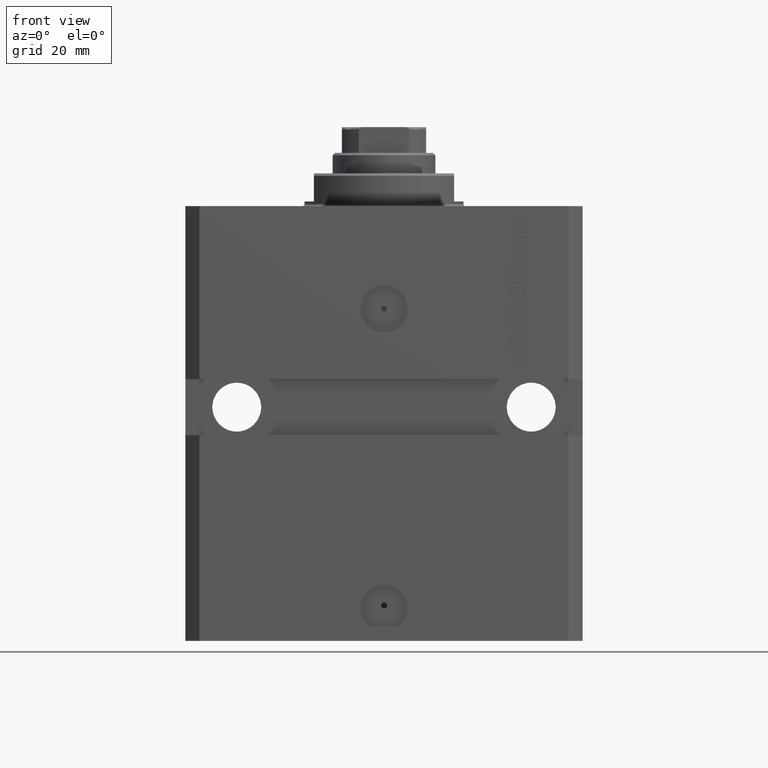
[diagram: clean part render]
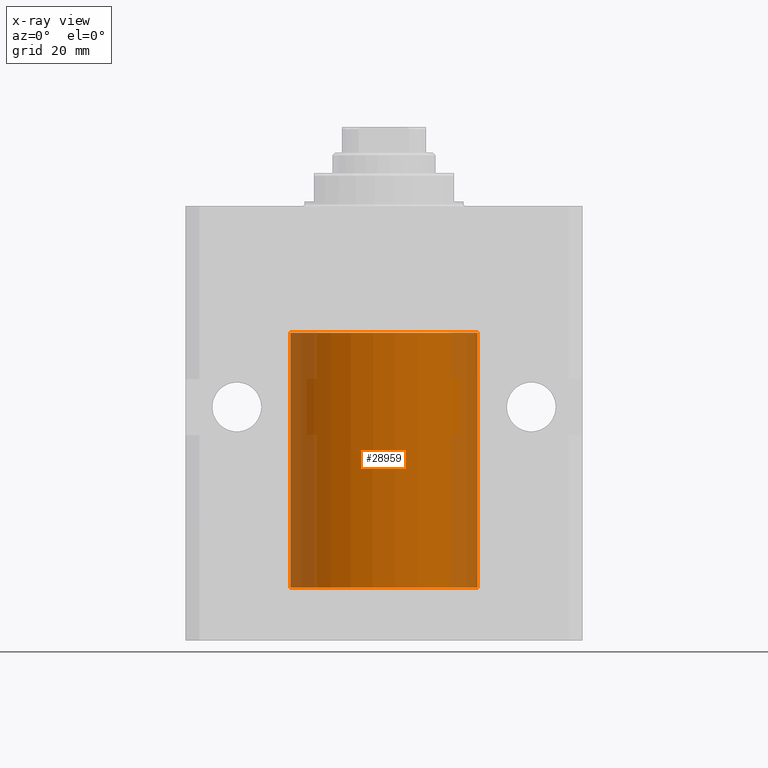
[diagram: x-ray — body ghosted, one internal face saturated and labeled with its STEP entity id]
A machine part, front view, then the same camera in x-ray: the body is ghosted and one INTERNAL B-rep face — a face not visible from any outside direction — is saturated and labeled: STEP entity #28959.
In plain terms, the highlighted cylindrical surface (partial cylindrical patch) has radius 20 mm, axis along (0, 0, 1).
Its self-contained STEP definition (entity closure, byte-faithful):
#296 = CARTESIAN_POINT ( 'NONE',  ( 20.00000000000000000, -4.058908006348821872E-15, -79.62500000000000000 ) ) ;
#825 = CARTESIAN_POINT ( 'NONE',  ( 20.00000000000000000, -4.058908006348821872E-15, -79.62500000000000000 ) ) ;
#1687 = CARTESIAN_POINT ( 'NONE',  ( 0.000000000000000000, 0.000000000000000000, -81.60000000000000853 ) ) ;
#2160 = VERTEX_POINT ( 'NONE', #12771 ) ;
#2533 = LINE ( 'NONE', #47924, #16704 ) ;
#2841 = CARTESIAN_POINT ( 'NONE',  ( -19.99255948581289033, -0.5575529953197770894, -78.67383335671266309 ) ) ;
#3705 = AXIS2_PLACEMENT_3D ( 'NONE', #1687, #13351, #28208 ) ;
#4116 = EDGE_CURVE ( 'NONE', #25676, #22899, #21767, .T. ) ;
#4125 = CARTESIAN_POINT ( 'NONE',  ( 20.00000000000000000, -0.1632180151482451602, -78.37499999999984368 ) ) ;
#4318 = DIRECTION ( 'NONE',  ( 1.000000000000000000, 0.000000000000000000, 0.000000000000000000 ) ) ;
#4427 = CARTESIAN_POINT ( 'NONE',  ( 20.00000000000010303, 3.555666352936568165E-13, -78.37499999999667466 ) ) ;
#4481 = CARTESIAN_POINT ( 'NONE',  ( 20.00000000000000000, -0.1650670266421430665, -79.62500000000002842 ) ) ;
#5583 = ORIENTED_EDGE ( 'NONE', *, *, #10221, .T. ) ;
#6020 = EDGE_LOOP ( 'NONE', ( #28182, #32768, #38652, #5583, #44420, #37906, #6079, #41953, #35249 ) ) ;
#6079 = ORIENTED_EDGE ( 'NONE', *, *, #32302, .T. ) ;
#8605 = CARTESIAN_POINT ( 'NONE',  ( 19.99023198964933812, -0.6250000000000827116, -79.00000000000000000 ) ) ;
#9328 = VECTOR ( 'NONE', #48114, 1000.000000000000000 ) ;
#9820 = DIRECTION ( 'NONE',  ( 0.000000000000000000, 0.000000000000000000, 1.000000000000000000 ) ) ;
#9899 = CARTESIAN_POINT ( 'NONE',  ( -20.00000000000000000, -1.124177324826063808E-14, -78.37500000000000000 ) ) ;
#10142 = CARTESIAN_POINT ( 'NONE',  ( -19.99765984516762174, -0.3269569594424049930, -78.44291008943298493 ) ) ;
#10221 = EDGE_CURVE ( 'NONE', #11127, #15264, #40811, .T. ) ;
#10237 = AXIS2_PLACEMENT_3D ( 'NONE', #33749, #26452, #4318 ) ;
#10371 = CARTESIAN_POINT ( 'NONE',  ( -19.99767054355995555, -0.3263099029014857599, -79.55741108240768256 ) ) ;
#10392 = CARTESIAN_POINT ( 'NONE',  ( 20.00000000000000000, 0.000000000000000000, -27.10000000000000142 ) ) ;
#10810 = CYLINDRICAL_SURFACE ( 'NONE', #3705, 20.00000000000000000 ) ;
#11127 = VERTEX_POINT ( 'NONE', #9899 ) ;
#12664 = CARTESIAN_POINT ( 'NONE',  ( 19.99023198964933812, -0.6250000000000827116, -79.00000000000000000 ) ) ;
#12771 = CARTESIAN_POINT ( 'NONE',  ( -20.00000000000010303, 3.580159286679549072E-13, -79.62500000000332534 ) ) ;
#12877 = VECTOR ( 'NONE', #46278, 1000.000000000000000 ) ;
#13190 = LINE ( 'NONE', #42646, #12877 ) ;
#13351 = DIRECTION ( 'NONE',  ( -0.000000000000000000, -0.000000000000000000, 1.000000000000000000 ) ) ;
#14016 = CIRCLE ( 'NONE', #10237, 20.00000000000000000 ) ;
#14728 = VERTEX_POINT ( 'NONE', #24233 ) ;
#14822 = CARTESIAN_POINT ( 'NONE',  ( 19.99023198964933812, -0.6250000000000827116, -79.00000000000000000 ) ) ;
#15264 = VERTEX_POINT ( 'NONE', #22546 ) ;
#16704 = VECTOR ( 'NONE', #41107, 1000.000000000000000 ) ;
#18600 = AXIS2_PLACEMENT_3D ( 'NONE', #28568, #9820, #46569 ) ;
#19216 = EDGE_CURVE ( 'NONE', #21298, #36254, #2533, .T. ) ;
#20221 = EDGE_CURVE ( 'NONE', #25593, #22899, #13190, .T. ) ;
#20700 = CARTESIAN_POINT ( 'NONE',  ( -20.00000000000000000, 2.449293598294706513E-15, -81.60000000000000853 ) ) ;
#21298 = VERTEX_POINT ( 'NONE', #4427 ) ;
#21332 = CARTESIAN_POINT ( 'NONE',  ( -20.00000000000000355, -0.1631318982819177366, -79.62500000000015632 ) ) ;
#21767 = B_SPLINE_CURVE_WITH_KNOTS ( 'NONE', 3,
 ( #8605, #41693, #37799, #23450, #4481, #825 ),
 .UNSPECIFIED., .F., .F.,
 ( 4, 2, 4 ),
 ( 0.002931526102908805446, 0.003419696219975630440, 0.003907866337042455000 ),
 .UNSPECIFIED. ) ;
#22125 = CARTESIAN_POINT ( 'NONE',  ( 20.00000000000010303, 3.555666352936568165E-13, -78.37499999999667466 ) ) ;
#22546 = CARTESIAN_POINT ( 'NONE',  ( -20.00000000000000000, 2.449293598294706513E-15, -27.10000000000000142 ) ) ;
#22899 = VERTEX_POINT ( 'NONE', #296 ) ;
#23450 = CARTESIAN_POINT ( 'NONE',  ( 19.99766246719553209, -0.3267907458473873761, -79.55716086079694094 ) ) ;
#24233 = CARTESIAN_POINT ( 'NONE',  ( -20.00000000000000000, 2.449293598294706513E-15, -81.60000000000000853 ) ) ;
#24345 = EDGE_CURVE ( 'NONE', #2160, #11127, #42381, .T. ) ;
#25225 = CARTESIAN_POINT ( 'NONE',  ( -20.00000000000010303, 3.580159286679549072E-13, -79.62500000000332534 ) ) ;
#25593 = VERTEX_POINT ( 'NONE', #44070 ) ;
#25676 = VERTEX_POINT ( 'NONE', #12664 ) ;
#25739 = EDGE_CURVE ( 'NONE', #14728, #2160, #28012, .T. ) ;
#26452 = DIRECTION ( 'NONE',  ( 0.000000000000000000, 0.000000000000000000, 1.000000000000000000 ) ) ;
#28012 = LINE ( 'NONE', #20700, #37767 ) ;
#28182 = ORIENTED_EDGE ( 'NONE', *, *, #38562, .F. ) ;
#28208 = DIRECTION ( 'NONE',  ( 1.000000000000000000, 0.000000000000000000, 0.000000000000000000 ) ) ;
#28568 = CARTESIAN_POINT ( 'NONE',  ( 0.000000000000000000, 0.000000000000000000, -27.10000000000000142 ) ) ;
#28959 = ADVANCED_FACE ( 'NONE', ( #46922 ), #10810, .F. ) ;
#32302 = EDGE_CURVE ( 'NONE', #21298, #25676, #46849, .T. ) ;
#32768 = ORIENTED_EDGE ( 'NONE', *, *, #25739, .T. ) ;
#33749 = CARTESIAN_POINT ( 'NONE',  ( 0.000000000000000000, 0.000000000000000000, -81.60000000000000853 ) ) ;
#33942 = EDGE_CURVE ( 'NONE', #15264, #36254, #39587, .T. ) ;
#35249 = ORIENTED_EDGE ( 'NONE', *, *, #20221, .F. ) ;
#35303 = DIRECTION ( 'NONE',  ( -0.000000000000000000, -0.000000000000000000, 1.000000000000000000 ) ) ;
#36176 = CARTESIAN_POINT ( 'NONE',  ( -19.99257639367449357, -0.5569510432580352388, -79.32709448625169557 ) ) ;
#36254 = VERTEX_POINT ( 'NONE', #10392 ) ;
#36504 = CARTESIAN_POINT ( 'NONE',  ( 19.99766790699043995, -0.3264769477312362556, -78.44266063830006885 ) ) ;
#36645 = CARTESIAN_POINT ( 'NONE',  ( -20.00000000000000000, -1.124177324826063808E-14, -78.37500000000000000 ) ) ;
#36925 = CARTESIAN_POINT ( 'NONE',  ( -20.00000000000000000, 2.449293598294706513E-15, -81.60000000000000853 ) ) ;
#37767 = VECTOR ( 'NONE', #35303, 1000.000000000000000 ) ;
#37799 = CARTESIAN_POINT ( 'NONE',  ( 19.99256494106949944, -0.5573539455062719306, -79.32646132359609226 ) ) ;
#37906 = ORIENTED_EDGE ( 'NONE', *, *, #19216, .F. ) ;
#38562 = EDGE_CURVE ( 'NONE', #14728, #25593, #14016, .T. ) ;
#38652 = ORIENTED_EDGE ( 'NONE', *, *, #24345, .T. ) ;
#39587 = CIRCLE ( 'NONE', #18600, 20.00000000000000000 ) ;
#40520 = CARTESIAN_POINT ( 'NONE',  ( -20.00000000000000000, -0.1651542110816439091, -78.37500000000001421 ) ) ;
#40811 = LINE ( 'NONE', #36925, #9328 ) ;
#41107 = DIRECTION ( 'NONE',  ( -0.000000000000000000, -0.000000000000000000, 1.000000000000000000 ) ) ;
#41693 = CARTESIAN_POINT ( 'NONE',  ( 19.99023198964934167, -0.6250000000000828226, -79.16479419982725574 ) ) ;
#41953 = ORIENTED_EDGE ( 'NONE', *, *, #4116, .T. ) ;
#42381 = B_SPLINE_CURVE_WITH_KNOTS ( 'NONE', 3,
 ( #25225, #21332, #10371, #36176, #43709, #43479, #2841, #10142, #40520, #36645 ),
 .UNSPECIFIED., .F., .F.,
 ( 4, 2, 2, 2, 4 ),
 ( 0.001954154509844221576, 0.002442582466643782209, 0.002931010423443342408, 0.003419438380242903041, 0.003907866337042463674 ),
 .UNSPECIFIED. ) ;
#42646 = CARTESIAN_POINT ( 'NONE',  ( 20.00000000000000000, 0.000000000000000000, -81.60000000000000853 ) ) ;
#43479 = CARTESIAN_POINT ( 'NONE',  ( -19.99022768983530440, -0.6251375268966040677, -78.83566303088220195 ) ) ;
#43709 = CARTESIAN_POINT ( 'NONE',  ( -19.99023630310506761, -0.6248620367829604838, -79.16538138329534036 ) ) ;
#44070 = CARTESIAN_POINT ( 'NONE',  ( 20.00000000000000000, 0.000000000000000000, -81.60000000000000853 ) ) ;
#44420 = ORIENTED_EDGE ( 'NONE', *, *, #33942, .T. ) ;
#44746 = CARTESIAN_POINT ( 'NONE',  ( 19.99023198964933812, -0.6250000000000828226, -78.83503171949485022 ) ) ;
#44994 = CARTESIAN_POINT ( 'NONE',  ( 19.99257096259849931, -0.5571491910957669935, -78.67319862246098694 ) ) ;
#46278 = DIRECTION ( 'NONE',  ( -0.000000000000000000, -0.000000000000000000, 1.000000000000000000 ) ) ;
#46569 = DIRECTION ( 'NONE',  ( 1.000000000000000000, 0.000000000000000000, 0.000000000000000000 ) ) ;
#46849 = B_SPLINE_CURVE_WITH_KNOTS ( 'NONE', 3,
 ( #22125, #4125, #36504, #44994, #44746, #14822 ),
 .UNSPECIFIED., .F., .F.,
 ( 4, 2, 4 ),
 ( 0.001954154509844075859, 0.002442840306376440652, 0.002931526102908805446 ),
 .UNSPECIFIED. ) ;
#46922 = FACE_OUTER_BOUND ( 'NONE', #6020, .T. ) ;
#47924 = CARTESIAN_POINT ( 'NONE',  ( 20.00000000000000000, 0.000000000000000000, -81.60000000000000853 ) ) ;
#48114 = DIRECTION ( 'NONE',  ( -0.000000000000000000, -0.000000000000000000, 1.000000000000000000 ) ) ;